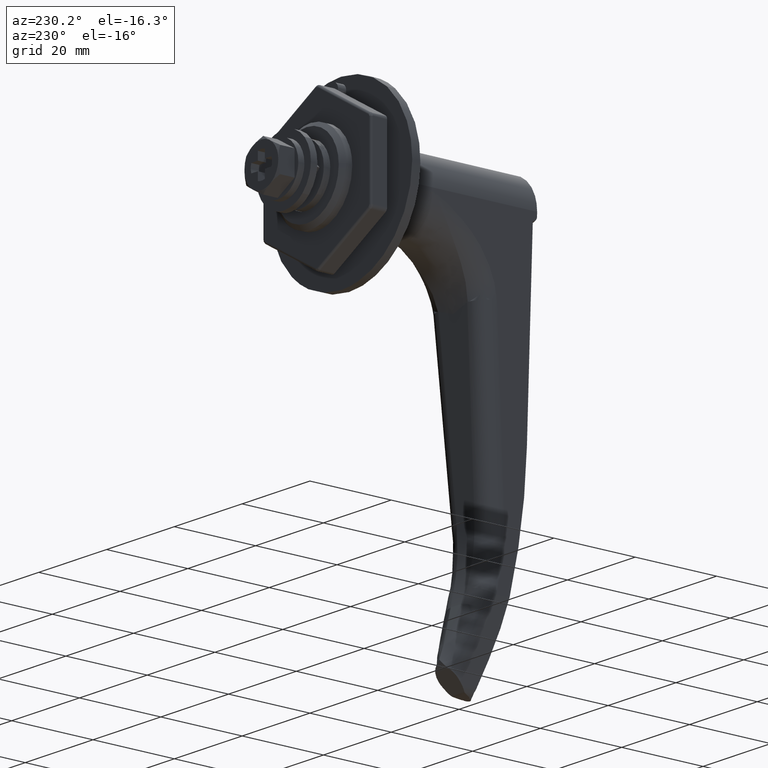
[diagram: clean part render]
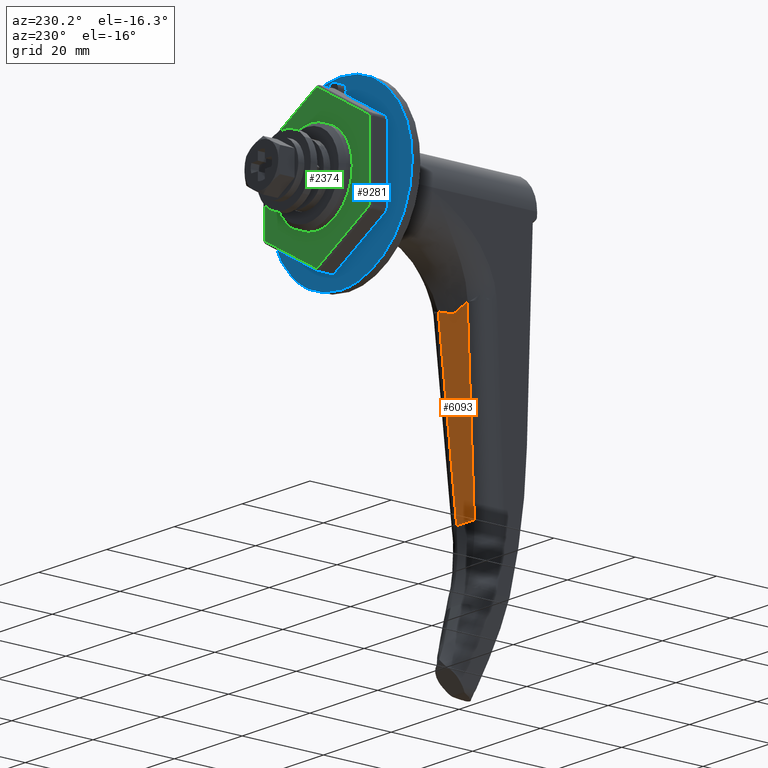
[diagram: same view with three faces highlighted in distinct colors, each labeled with its STEP entity id]
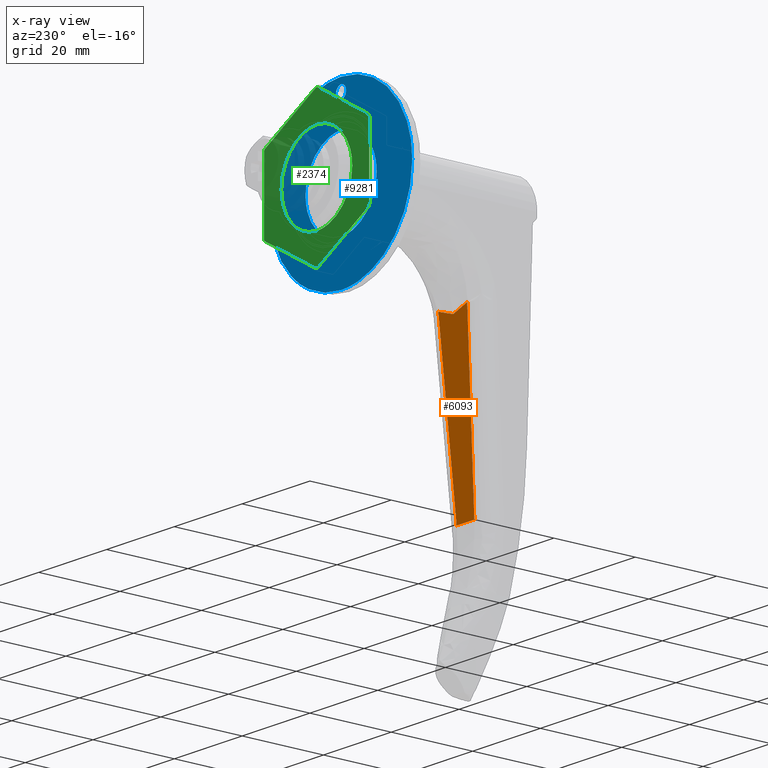
[diagram: x-ray of the same camera — body ghosted, the three highlighted faces saturated]
A machine part, auxiliary view with three faces highlighted in distinct colors.
The next image is the same camera in x-ray (body ghosted, the three faces saturated) — at least one of them is partly hidden behind the body in this view.
Their STEP definitions:

[orange] entity #6093 — the highlighted face is a freeform B-spline surface patch.
#3176=CARTESIAN_POINT('',(-21.588726110713299,2.599990310246715,-61.018468637680101));
#3177=VERTEX_POINT('',#3176);
#3224=CARTESIAN_POINT('',(-18.461229244179901,4.251630075732330,-19.176927912045400));
#3225=VERTEX_POINT('',#3224);
#3233=CARTESIAN_POINT('',(-21.588726110713299,2.599990310246715,-61.018468637680101));
#3234=CARTESIAN_POINT('',(-18.461229244179901,4.251630075732330,-19.176927912045400));
#3235=QUASI_UNIFORM_CURVE('',1,(#3233,#3234),.UNSPECIFIED.,.F.,.U.);
#3236=EDGE_CURVE('',#3177,#3225,#3235,.T.);
#3927=CARTESIAN_POINT('',(-18.461229244179901,-4.251630075732330,-19.176927912045400));
#3928=VERTEX_POINT('',#3927);
#3929=CARTESIAN_POINT('',(-21.588726110713299,-2.599990310246715,-61.018468637680101));
#3930=VERTEX_POINT('',#3929);
#3931=CARTESIAN_POINT('',(-18.461229244179901,-4.251630075732330,-19.176927912045400));
#3932=CARTESIAN_POINT('',(-21.588726110713299,-2.599990310246715,-61.018468637680101));
#3933=QUASI_UNIFORM_CURVE('',1,(#3931,#3932),.UNSPECIFIED.,.F.,.U.);
#3934=EDGE_CURVE('',#3928,#3930,#3933,.T.);
#6012=CARTESIAN_POINT('',(-21.588726110713299,2.599990310246715,-61.018468637680101));
#6013=CARTESIAN_POINT('',(-21.588726110713299,-2.599990310246715,-61.018468637680101));
#6014=QUASI_UNIFORM_CURVE('',1,(#6012,#6013),.UNSPECIFIED.,.F.,.U.);
#6015=EDGE_CURVE('',#3177,#3930,#6014,.T.);
#6067=CARTESIAN_POINT('',(-18.305010763573179,-4.676368143284589,-17.086942790605899));
#6068=CARTESIAN_POINT('',(-21.744944423548031,-4.676368143284589,-63.108451514564443));
#6069=CARTESIAN_POINT('',(-18.305010763573179,4.676368143284589,-17.086942790605899));
#6070=CARTESIAN_POINT('',(-21.744944423548031,4.676368143284589,-63.108451514564443));
#6071=B_SPLINE_SURFACE_WITH_KNOTS('',1,1,((#6067,#6069),(#6068,#6070)),.UNSPECIFIED.,.F.,.F.,.U.,(2,2),(2,2),(0.0,46.149890669582533),(0.0,9.352736286569177),.UNSPECIFIED.);
#6072=ORIENTED_EDGE('',*,*,#6015,.F.);
#6073=ORIENTED_EDGE('',*,*,#3236,.T.);
#6074=CARTESIAN_POINT('',(-18.565226909597900,0.0,-20.568271449275102));
#6075=VERTEX_POINT('',#6074);
#6076=CARTESIAN_POINT('',(-18.461229244179901,4.251630075732330,-19.176927912045400));
#6077=CARTESIAN_POINT('',(-18.507142297790001,2.890009205638521,-19.791180454716500));
#6078=CARTESIAN_POINT('',(-18.542080316848072,1.461853653546570,-20.258602361013050));
#6079=CARTESIAN_POINT('',(-18.565226909597900,0.0,-20.568271449275102));
#6080=B_SPLINE_CURVE_WITH_KNOTS('',3,(#6076,#6077,#6078,#6079),.UNSPECIFIED.,.F.,.U.,(4,4),(2.685643E-009,4.483396803675033),.UNSPECIFIED.);
#6081=EDGE_CURVE('',#3225,#6075,#6080,.T.);
#6082=ORIENTED_EDGE('',*,*,#6081,.T.);
#6083=CARTESIAN_POINT('',(-18.565226909597900,0.0,-20.568271449275102));
#6084=CARTESIAN_POINT('',(-18.542113661456970,-1.461959414743205,-20.259048465316400));
#6085=CARTESIAN_POINT('',(-18.507180767765789,-2.890216123306763,-19.791695129272050));
#6086=CARTESIAN_POINT('',(-18.461229244179901,-4.251630075732330,-19.176927912045400));
#6087=B_SPLINE_CURVE_WITH_KNOTS('',3,(#6083,#6084,#6085,#6086),.UNSPECIFIED.,.F.,.U.,(4,4),(2.719688E-009,4.483451685978779),.UNSPECIFIED.);
#6088=EDGE_CURVE('',#6075,#3928,#6087,.T.);
#6089=ORIENTED_EDGE('',*,*,#6088,.T.);
#6090=ORIENTED_EDGE('',*,*,#3934,.T.);
#6091=EDGE_LOOP('',(#6072,#6073,#6082,#6089,#6090));
#6092=FACE_OUTER_BOUND('',#6091,.T.);
#6093=ADVANCED_FACE('',(#6092),#6071,.T.);

[blue] entity #9281 — the highlighted face is a freeform B-spline surface patch.
#7919=CARTESIAN_POINT('',(9.0,-1.051363563901432,19.069876000525419));
#7920=VERTEX_POINT('',#7919);
#7926=CARTESIAN_POINT('',(9.0,-1.500000000000000,18.0));
#7927=VERTEX_POINT('',#7926);
#7928=CARTESIAN_POINT('',(9.0,-1.051363563901432,19.069876000525419));
#7929=CARTESIAN_POINT('',(9.000000000000002,-1.210982982597567,18.913540334039599));
#7930=CARTESIAN_POINT('',(9.000000000000007,-1.430220625754180,18.570714824174750));
#7931=CARTESIAN_POINT('',(8.999999999999995,-1.500129193199886,18.173725380620930));
#7932=CARTESIAN_POINT('',(9.0,-1.500000000000000,18.0));
#7933=B_SPLINE_CURVE_WITH_KNOTS('',3,(#7928,#7929,#7930,#7931,#7932),.UNSPECIFIED.,.F.,.U.,(4,1,4),(0.000000135440806,0.670111241289914,1.191309819094550),.UNSPECIFIED.);
#7934=EDGE_CURVE('',#7920,#7927,#7933,.T.);
#7936=CARTESIAN_POINT('',(9.0,0.0,16.500000000000000));
#7937=VERTEX_POINT('',#7936);
#7938=CARTESIAN_POINT('',(9.0,-1.500000000000000,18.0));
#7939=CARTESIAN_POINT('',(9.000000000000012,-1.500341379580594,17.779035364253499));
#7940=CARTESIAN_POINT('',(8.999999999999984,-1.406107155588419,17.362158952674069));
#7941=CARTESIAN_POINT('',(9.000000000000014,-1.033646048905965,16.859506385253741));
#7942=CARTESIAN_POINT('',(8.999999999999975,-0.539937621091392,16.563885609862730));
#7943=CARTESIAN_POINT('',(9.000000000000037,-0.171806615328265,16.499902080349390));
#7944=CARTESIAN_POINT('',(9.0,0.0,16.500000000000000));
#7945=B_SPLINE_CURVE_WITH_KNOTS('',3,(#7938,#7939,#7940,#7941,#7942,#7943,#7944),.UNSPECIFIED.,.F.,.U.,(4,1,1,1,4),(0.000000348526040,0.662746990287031,1.251847667183078,1.840962228493317,2.356430824938663),.UNSPECIFIED.);
#7946=EDGE_CURVE('',#7927,#7937,#7945,.T.);
#7948=CARTESIAN_POINT('',(9.0,1.500000000000000,18.0));
#7949=VERTEX_POINT('',#7948);
#7950=CARTESIAN_POINT('',(9.0,0.0,16.500000000000000));
#7951=CARTESIAN_POINT('',(8.999999999999996,0.171808448979477,16.499919557907209));
#7952=CARTESIAN_POINT('',(9.000000000000011,0.539938815198251,16.563860824536711));
#7953=CARTESIAN_POINT('',(9.000000000000011,1.033632995481787,16.859521892273520));
#7954=CARTESIAN_POINT('',(8.999999999999954,1.406142542384469,17.362146688398351));
#7955=CARTESIAN_POINT('',(9.000000000000021,1.500312085099186,17.779039540137841));
#7956=CARTESIAN_POINT('',(9.0,1.500000000000000,18.0));
#7957=B_SPLINE_CURVE_WITH_KNOTS('',3,(#7950,#7951,#7952,#7953,#7954,#7955,#7956),.UNSPECIFIED.,.F.,.U.,(4,1,1,1,4),(0.000000348526448,0.515468944971690,1.104583506281826,1.693684183177757,2.356430824938662),.UNSPECIFIED.);
#7958=EDGE_CURVE('',#7937,#7949,#7957,.T.);
#7960=CARTESIAN_POINT('',(9.0,1.069876000525417,19.051363563901429));
#7961=VERTEX_POINT('',#7960);
#7962=CARTESIAN_POINT('',(9.0,1.500000000000000,18.0));
#7963=CARTESIAN_POINT('',(8.999999999999972,1.500340624274637,18.218503629321049));
#7964=CARTESIAN_POINT('',(9.000000000000057,1.413524455582440,18.606495028035511));
#7965=CARTESIAN_POINT('',(8.999999999999961,1.189048116394448,18.930252158733790));
#7966=CARTESIAN_POINT('',(9.0,1.069876000525417,19.051363563901429));
#7967=B_SPLINE_CURVE_WITH_KNOTS('',3,(#7962,#7963,#7964,#7965,#7966),.UNSPECIFIED.,.F.,.U.,(4,1,4),(0.000000121054579,0.655380128760466,1.165121075374023),.UNSPECIFIED.);
#7968=EDGE_CURVE('',#7949,#7961,#7967,.T.);
#8003=CARTESIAN_POINT('',(9.0,0.0,19.500000000000000));
#8004=VERTEX_POINT('',#8003);
#8005=CARTESIAN_POINT('',(9.0,1.069876000525417,19.051363563901429));
#8006=CARTESIAN_POINT('',(8.999999999999993,0.913535404344215,19.210965571532459));
#8007=CARTESIAN_POINT('',(9.000000000000011,0.570724081836286,19.430268312371538));
#8008=CARTESIAN_POINT('',(8.999999999999993,0.173718721374791,19.500096914980350));
#8009=CARTESIAN_POINT('',(9.0,0.0,19.500000000000000));
#8010=B_SPLINE_CURVE_WITH_KNOTS('',3,(#8005,#8006,#8007,#8008,#8009),.UNSPECIFIED.,.F.,.U.,(4,1,4),(0.000000135440776,0.670111241289883,1.191309819094549),.UNSPECIFIED.);
#8011=EDGE_CURVE('',#7961,#8004,#8010,.T.);
#8013=CARTESIAN_POINT('',(9.0,0.0,19.500000000000000));
#8014=CARTESIAN_POINT('',(8.999999999999995,-0.169912080298298,19.500111332152208));
#8015=CARTESIAN_POINT('',(9.000000000000020,-0.558170144180952,19.433293755259101));
#8016=CARTESIAN_POINT('',(8.999999999999986,-0.895752817785830,19.223272278668968));
#8017=CARTESIAN_POINT('',(9.0,-1.051363563901432,19.069876000525419));
#8018=B_SPLINE_CURVE_WITH_KNOTS('',3,(#8013,#8014,#8015,#8016,#8017),.UNSPECIFIED.,.F.,.U.,(4,1,4),(0.000000121054596,0.509741067668168,1.165121075374026),.UNSPECIFIED.);
#8019=EDGE_CURVE('',#8004,#7920,#8018,.T.);
#8465=CARTESIAN_POINT('',(9.000000000000021,13.560582532008020,16.034668156229198));
#8466=VERTEX_POINT('',#8465);
#8467=CARTESIAN_POINT('',(9.0,20.999999999999929,-0.000001787883350));
#8468=VERTEX_POINT('',#8467);
#8469=CARTESIAN_POINT('',(9.000000000000021,13.560582532008020,16.034668156229198));
#8470=CARTESIAN_POINT('',(9.000000000000028,14.794304506320110,14.991763058540259));
#8471=CARTESIAN_POINT('',(9.000000000000012,16.822609779938539,12.828531646119080));
#8472=CARTESIAN_POINT('',(9.000000000000020,18.746171297380311,9.641251435879175));
#8473=CARTESIAN_POINT('',(9.000000000000007,19.914190464668639,6.828847771985099));
#8474=CARTESIAN_POINT('',(9.000000000000018,20.757146643539659,3.800934144146061));
#8475=CARTESIAN_POINT('',(8.999999999999996,21.000218261310330,1.425394786664547));
#8476=CARTESIAN_POINT('',(9.0,20.999999999999929,-0.000001787883350));
#8477=B_SPLINE_CURVE_WITH_KNOTS('',3,(#8469,#8470,#8471,#8472,#8473,#8474,#8475,#8476),.UNSPECIFIED.,.F.,.U.,(4,1,1,1,1,4),(0.000000015245579,4.846321744419464,8.837411524365525,11.118029291058461,13.968809607917040,18.244975742240239),.UNSPECIFIED.);
#8478=EDGE_CURVE('',#8466,#8468,#8477,.T.);
#8480=CARTESIAN_POINT('',(9.0,0.0,-21.0));
#8481=VERTEX_POINT('',#8480);
#8482=CARTESIAN_POINT('',(9.0,20.999999999999929,-0.000001787883350));
#8483=CARTESIAN_POINT('',(9.000000000000011,21.000205812864259,-1.460346255858687));
#8484=CARTESIAN_POINT('',(8.999999999999982,20.685209190925079,-4.466908332619786));
#8485=CARTESIAN_POINT('',(9.000000000000009,19.356866776980890,-8.488133796891180));
#8486=CARTESIAN_POINT('',(8.999999999999966,17.316819818317072,-12.089047506348701));
#8487=CARTESIAN_POINT('',(9.000000000000096,14.927146477844200,-14.929054643221949));
#8488=CARTESIAN_POINT('',(8.999999999999973,11.812066945447050,-17.517821062734690));
#8489=CARTESIAN_POINT('',(9.000000000000048,8.631998940811075,-19.268044922513759));
#8490=CARTESIAN_POINT('',(9.000000000000128,4.552608438858165,-20.643574480222540));
#8491=CARTESIAN_POINT('',(8.999999999999865,1.804005450216786,-21.000470332563271));
#8492=CARTESIAN_POINT('',(9.0,0.0,-21.0));
#8493=B_SPLINE_CURVE_WITH_KNOTS('',3,(#8482,#8483,#8484,#8485,#8486,#8487,#8488,#8489,#8490,#8491,#8492),.UNSPECIFIED.,.F.,.U.,(4,1,1,1,1,1,1,1,4),(0.000000061579343,4.381032639060738,9.019873073305600,12.627847744834250,16.751153246597461,20.101381394858191,24.740199506795271,27.575039120371319,32.986928832691611),.UNSPECIFIED.);
#8494=EDGE_CURVE('',#8468,#8481,#8493,.T.);
#8496=CARTESIAN_POINT('',(8.999999999999981,-14.455445887193299,-15.232861367956390));
#8497=VERTEX_POINT('',#8496);
#8498=CARTESIAN_POINT('',(9.0,0.0,-21.0));
#8499=CARTESIAN_POINT('',(8.999999999999993,-1.993046480171629,-21.000841332977249));
#8500=CARTESIAN_POINT('',(9.000000000000011,-5.314127265225916,-20.523386186468390));
#8501=CARTESIAN_POINT('',(8.999999999999968,-10.272638741049141,-18.545120224267421));
#8502=CARTESIAN_POINT('',(8.999999999999995,-13.010307951431111,-16.605389455244890));
#8503=CARTESIAN_POINT('',(8.999999999999981,-14.455445887193299,-15.232861367956390));
#8504=B_SPLINE_CURVE_WITH_KNOTS('',3,(#8498,#8499,#8500,#8501,#8502,#8503),.UNSPECIFIED.,.F.,.U.,(4,1,1,4),(0.000000033975514,5.978880015181749,9.964796192250240,15.943676173439000),.UNSPECIFIED.);
#8505=EDGE_CURVE('',#8481,#8497,#8504,.T.);
#8573=CARTESIAN_POINT('',(9.0,0.0,21.0));
#8574=VERTEX_POINT('',#8573);
#8575=CARTESIAN_POINT('',(9.0,0.0,21.0));
#8576=CARTESIAN_POINT('',(9.000000000000014,1.766009444399656,21.000501000486821));
#8577=CARTESIAN_POINT('',(8.999999999999998,5.067331284299089,20.581021265250431));
#8578=CARTESIAN_POINT('',(9.000000000000030,9.690602013485707,18.830453236742880));
#8579=CARTESIAN_POINT('',(9.000000000000009,12.329619742566900,17.076124006169039));
#8580=CARTESIAN_POINT('',(9.000000000000021,13.560582532008020,16.034668156229198));
#8581=B_SPLINE_CURVE_WITH_KNOTS('',3,(#8575,#8576,#8577,#8578,#8579,#8580),.UNSPECIFIED.,.F.,.U.,(4,1,1,4),(0.000000034945105,5.297908670073625,9.904753210727776,14.741962540870720),.UNSPECIFIED.);
#8582=EDGE_CURVE('',#8574,#8466,#8581,.T.);
#8632=CARTESIAN_POINT('',(9.0,-20.999999999999929,0.000001787883350));
#8633=VERTEX_POINT('',#8632);
#8634=CARTESIAN_POINT('',(8.999999999999981,-14.455445887193299,-15.232861367956390));
#8635=CARTESIAN_POINT('',(8.999999999999988,-15.550259122864290,-14.194294430548680));
#8636=CARTESIAN_POINT('',(8.999999999999977,-17.456511129930330,-11.947739442885091));
#8637=CARTESIAN_POINT('',(8.999999999999982,-19.277616424019481,-8.570904692285646));
#8638=CARTESIAN_POINT('',(8.999999999999986,-20.631038994811661,-4.615536064176503));
#8639=CARTESIAN_POINT('',(9.000000000000023,-21.000608958070639,-1.864187671940732));
#8640=CARTESIAN_POINT('',(9.0,-20.999999999999929,0.000001787883350));
#8641=B_SPLINE_CURVE_WITH_KNOTS('',3,(#8634,#8635,#8636,#8637,#8638,#8639,#8640),.UNSPECIFIED.,.F.,.U.,(4,1,1,1,4),(0.000000025891911,4.527115372701969,8.787918873195064,11.450924291216770,17.043255793876270),.UNSPECIFIED.);
#8642=EDGE_CURVE('',#8497,#8633,#8641,.T.);
#8644=CARTESIAN_POINT('',(9.0,-20.999999999999929,0.000001787883350));
#8645=CARTESIAN_POINT('',(8.999999999999991,-21.000573741746891,1.889929886232313));
#8646=CARTESIAN_POINT('',(9.000000000000005,-20.521351769814899,5.411589720931269));
#8647=CARTESIAN_POINT('',(9.000000000000052,-18.597587586373820,10.138008472903840));
#8648=CARTESIAN_POINT('',(8.999999999999883,-16.059343634961639,13.741633374835510));
#8649=CARTESIAN_POINT('',(9.000000000000116,-13.498956574741440,16.179023681995371));
#8650=CARTESIAN_POINT('',(8.999999999999918,-10.907689418324930,18.027934186058779));
#8651=CARTESIAN_POINT('',(9.000000000000101,-8.611720933387408,19.219163220465099));
#8652=CARTESIAN_POINT('',(9.000000000000100,-5.865255652790585,20.220906254038340));
#8653=CARTESIAN_POINT('',(8.999999999999632,-3.178383570818575,20.841594299660350));
#8654=CARTESIAN_POINT('',(9.000000000000142,-1.030817230017344,21.000046765711151));
#8655=CARTESIAN_POINT('',(9.0,0.0,21.0));
#8656=B_SPLINE_CURVE_WITH_KNOTS('',3,(#8644,#8645,#8646,#8647,#8648,#8649,#8650,#8651,#8652,#8653,#8654,#8655),.UNSPECIFIED.,.F.,.U.,(4,1,1,1,1,1,1,1,1,4),(0.000000061581211,5.669624955543984,10.566129484218621,15.204987531023260,18.812804860275492,21.132212118037032,24.740199506795321,26.544190593380119,29.894455727821889,32.986928832691603),.UNSPECIFIED.);
#8657=EDGE_CURVE('',#8633,#8574,#8656,.T.);
#8725=CARTESIAN_POINT('',(9.0,-7.227722673835004,-7.616430366722223));
#8726=VERTEX_POINT('',#8725);
#8732=CARTESIAN_POINT('',(9.0,0.0,-10.500000000000000));
#8733=VERTEX_POINT('',#8732);
#8734=CARTESIAN_POINT('',(9.0,0.0,-10.500000000000000));
#8735=CARTESIAN_POINT('',(9.000000000000009,-0.788884730183752,-10.500125840106930));
#8736=CARTESIAN_POINT('',(9.000000000000009,-2.325041893967969,-10.326065289770661));
#8737=CARTESIAN_POINT('',(8.999999999999973,-4.851512478502834,-9.454784466551343));
#8738=CARTESIAN_POINT('',(9.000000000000009,-6.414927719911177,-8.388622030128026));
#8739=CARTESIAN_POINT('',(9.0,-7.227722673835004,-7.616430366722223));
#8740=B_SPLINE_CURVE_WITH_KNOTS('',3,(#8734,#8735,#8736,#8737,#8738,#8739),.UNSPECIFIED.,.F.,.U.,(4,1,1,4),(0.000000062286655,2.366642800600213,4.608704811168156,7.971837951577985),.UNSPECIFIED.);
#8741=EDGE_CURVE('',#8733,#8726,#8740,.T.);
#8743=CARTESIAN_POINT('',(8.999999999999998,10.499999999999689,-0.000002559508380));
#8744=VERTEX_POINT('',#8743);
#8745=CARTESIAN_POINT('',(8.999999999999998,10.499999999999689,-0.000002559508380));
#8746=CARTESIAN_POINT('',(9.000000000000004,10.500054477882410,-0.687206356793712));
#8747=CARTESIAN_POINT('',(8.999999999999991,10.343591051407619,-2.276452087097048));
#8748=CARTESIAN_POINT('',(9.000000000000009,9.651839436344654,-4.328395084748673));
#8749=CARTESIAN_POINT('',(8.999999999999993,8.664914905549969,-5.997495958493964));
#8750=CARTESIAN_POINT('',(9.000000000000009,7.526589098691447,-7.402249463525625));
#8751=CARTESIAN_POINT('',(9.000000000000032,6.054144301461109,-8.672447661893896));
#8752=CARTESIAN_POINT('',(8.999999999999920,4.352618658810576,-9.608807597345299));
#8753=CARTESIAN_POINT('',(8.999999999999931,2.362166671672327,-10.307325583018891));
#8754=CARTESIAN_POINT('',(9.000000000000155,0.944963493565627,-10.500304801052030));
#8755=CARTESIAN_POINT('',(9.0,0.0,-10.500000000000000));
#8756=B_SPLINE_CURVE_WITH_KNOTS('',3,(#8745,#8746,#8747,#8748,#8749,#8750,#8751,#8752,#8753,#8754,#8755),.UNSPECIFIED.,.F.,.U.,(4,1,1,1,1,1,1,1,4),(0.000000248265781,2.061642394318534,4.767648881368269,6.442809786710246,7.860181680523562,10.179549172558970,12.241240240383700,13.658678684820430,16.493463477616299),.UNSPECIFIED.);
#8757=EDGE_CURVE('',#8744,#8733,#8756,.T.);
#8759=CARTESIAN_POINT('',(8.999999999999998,6.780291045206930,8.017333727080322));
#8760=VERTEX_POINT('',#8759);
#8761=CARTESIAN_POINT('',(8.999999999999998,6.780291045206930,8.017333727080322));
#8762=CARTESIAN_POINT('',(8.999999999999984,7.469761985077748,7.434559458310127));
#8763=CARTESIAN_POINT('',(9.000000000000030,8.406108663887354,6.408185794863694));
#8764=CARTESIAN_POINT('',(8.999999999999973,9.414873503181143,4.736444575970232));
#8765=CARTESIAN_POINT('',(9.000000000000011,10.237978510620399,2.755433000100599));
#8766=CARTESIAN_POINT('',(9.000000000000016,10.500580738495589,1.092879184159623));
#8767=CARTESIAN_POINT('',(8.999999999999998,10.499999999999689,-0.000002559508380));
#8768=B_SPLINE_CURVE_WITH_KNOTS('',3,(#8761,#8762,#8763,#8764,#8765,#8766,#8767),.UNSPECIFIED.,.F.,.U.,(4,1,1,1,4),(0.000000081527130,2.708247474160539,4.133650604764563,5.844072372925274,9.122489300267825),.UNSPECIFIED.);
#8769=EDGE_CURVE('',#8760,#8744,#8768,.T.);
#8809=CARTESIAN_POINT('',(9.0,0.0,10.500000000000000));
#8810=VERTEX_POINT('',#8809);
#8811=CARTESIAN_POINT('',(9.0,0.0,10.500000000000000));
#8812=CARTESIAN_POINT('',(9.000000000000016,1.190265640989344,10.500905214686810));
#8813=CARTESIAN_POINT('',(8.999999999999989,2.878828879427262,10.209605077060321));
#8814=CARTESIAN_POINT('',(9.000000000000007,5.136580424527804,9.224541649019750));
#8815=CARTESIAN_POINT('',(8.999999999999981,6.194112338047700,8.513262643198365));
#8816=CARTESIAN_POINT('',(8.999999999999998,6.780291045206930,8.017333727080322));
#8817=B_SPLINE_CURVE_WITH_KNOTS('',3,(#8811,#8812,#8813,#8814,#8815,#8816),.UNSPECIFIED.,.F.,.U.,(4,1,1,4),(0.000000047730281,3.570354559783343,5.067545528080011,7.370981184399978),.UNSPECIFIED.);
#8818=EDGE_CURVE('',#8810,#8760,#8817,.T.);
#8820=CARTESIAN_POINT('',(9.0,-10.499999999999689,0.000002559508222));
#8821=VERTEX_POINT('',#8820);
#8822=CARTESIAN_POINT('',(9.0,-10.499999999999689,0.000002559508222));
#8823=CARTESIAN_POINT('',(8.999999999999972,-10.500470089572790,1.073849138488684));
#8824=CARTESIAN_POINT('',(9.000000000000011,-10.234113950426220,2.791571217804887));
#8825=CARTESIAN_POINT('',(8.999999999999998,-9.212179707588666,5.216294279725378));
#8826=CARTESIAN_POINT('',(9.000000000000004,-7.929411555226253,7.014242814690380));
#8827=CARTESIAN_POINT('',(8.999999999999993,-6.097514658665562,8.654204170202357));
#8828=CARTESIAN_POINT('',(9.000000000000078,-4.093484138415049,9.773387643241815));
#8829=CARTESIAN_POINT('',(9.000000000000034,-1.932791322201336,10.385346644975931));
#8830=CARTESIAN_POINT('',(8.999999999999915,-0.601304901441496,10.500036143325030));
#8831=CARTESIAN_POINT('',(9.0,0.0,10.500000000000000));
#8832=B_SPLINE_CURVE_WITH_KNOTS('',3,(#8822,#8823,#8824,#8825,#8826,#8827,#8828,#8829,#8830,#8831),.UNSPECIFIED.,.F.,.U.,(4,1,1,1,1,1,1,4),(0.000000248265930,3.221377719530027,5.154218440894049,7.860181680523644,9.792988692686929,12.498955170558199,14.689533207535360,16.493463477616402),.UNSPECIFIED.);
#8833=EDGE_CURVE('',#8821,#8810,#8832,.T.);
#8835=CARTESIAN_POINT('',(9.0,-7.227722673835004,-7.616430366722223));
#8836=CARTESIAN_POINT('',(9.000000000000004,-7.710658577129719,-7.158190635885669));
#8837=CARTESIAN_POINT('',(9.0,-8.735557576047047,-5.981446436986691));
#8838=CARTESIAN_POINT('',(9.000000000000007,-9.776137471611914,-4.051883331101468));
#8839=CARTESIAN_POINT('',(8.999999999999966,-10.377148568261241,-1.952823459063162));
#8840=CARTESIAN_POINT('',(9.000000000000092,-10.500080221085449,-0.665749934946080));
#8841=CARTESIAN_POINT('',(9.0,-10.499999999999689,0.000002559508222));
#8842=B_SPLINE_CURVE_WITH_KNOTS('',3,(#8835,#8836,#8837,#8838,#8839,#8840,#8841),.UNSPECIFIED.,.F.,.U.,(4,1,1,1,4),(0.000000066862032,1.997258631269657,4.660256539424528,6.524374585231938,8.521629371096674),.UNSPECIFIED.);
#8843=EDGE_CURVE('',#8726,#8821,#8842,.T.);
#9252=CARTESIAN_POINT('',(9.0,-23.097899918595768,-23.097899918595850));
#9253=CARTESIAN_POINT('',(9.0,-23.097899918595768,23.097901045123638));
#9254=CARTESIAN_POINT('',(9.0,23.097901045123550,-23.097899918595850));
#9255=CARTESIAN_POINT('',(9.0,23.097901045123550,23.097901045123638));
#9256=B_SPLINE_SURFACE_WITH_KNOTS('',1,1,((#9252,#9254),(#9253,#9255)),.UNSPECIFIED.,.F.,.F.,.U.,(2,2),(2,2),(0.0,46.195800963719492),(0.0,46.195800963719321),.UNSPECIFIED.);
#9257=ORIENTED_EDGE('',*,*,#8505,.F.);
#9258=ORIENTED_EDGE('',*,*,#8494,.F.);
#9259=ORIENTED_EDGE('',*,*,#8478,.F.);
#9260=ORIENTED_EDGE('',*,*,#8582,.F.);
#9261=ORIENTED_EDGE('',*,*,#8657,.F.);
#9262=ORIENTED_EDGE('',*,*,#8642,.F.);
#9263=EDGE_LOOP('',(#9257,#9258,#9259,#9260,#9261,#9262));
#9264=FACE_OUTER_BOUND('',#9263,.T.);
#9265=ORIENTED_EDGE('',*,*,#8757,.T.);
#9266=ORIENTED_EDGE('',*,*,#8741,.T.);
#9267=ORIENTED_EDGE('',*,*,#8843,.T.);
#9268=ORIENTED_EDGE('',*,*,#8833,.T.);
#9269=ORIENTED_EDGE('',*,*,#8818,.T.);
#9270=ORIENTED_EDGE('',*,*,#8769,.T.);
#9271=EDGE_LOOP('',(#9265,#9266,#9267,#9268,#9269,#9270));
#9272=FACE_BOUND('',#9271,.T.);
#9273=ORIENTED_EDGE('',*,*,#7946,.F.);
#9274=ORIENTED_EDGE('',*,*,#7934,.F.);
#9275=ORIENTED_EDGE('',*,*,#8019,.F.);
#9276=ORIENTED_EDGE('',*,*,#8011,.F.);
#9277=ORIENTED_EDGE('',*,*,#7968,.F.);
#9278=ORIENTED_EDGE('',*,*,#7958,.F.);
#9279=EDGE_LOOP('',(#9273,#9274,#9275,#9276,#9277,#9278));
#9280=FACE_BOUND('',#9279,.T.);
#9281=ADVANCED_FACE('',(#9264,#9272,#9280),#9256,.F.);

[green] entity #2374 — the highlighted face is a freeform B-spline surface patch.
#468=CARTESIAN_POINT('',(17.000000000023800,-8.017334614538587,6.780291795200267));
#469=VERTEX_POINT('',#468);
#470=CARTESIAN_POINT('',(17.0,0.0,10.500000000000000));
#471=VERTEX_POINT('',#470);
#472=CARTESIAN_POINT('',(17.000000000023800,-8.017334614538587,6.780291795200267));
#473=CARTESIAN_POINT('',(17.000000000022329,-7.526536698925447,7.360841447424028));
#474=CARTESIAN_POINT('',(17.000000000019391,-6.521928441786195,8.315677768704569));
#475=CARTESIAN_POINT('',(17.000000000013259,-4.505726130911639,9.589689548539930));
#476=CARTESIAN_POINT('',(17.000000000007098,-2.328187010554578,10.341753670960451));
#477=CARTESIAN_POINT('',(17.000000000001901,-0.665162467314588,10.500017313920370));
#478=CARTESIAN_POINT('',(17.0,0.0,10.500000000000000));
#479=B_SPLINE_CURVE_WITH_KNOTS('',3,(#472,#473,#474,#475,#476,#477,#478),.UNSPECIFIED.,.F.,.U.,(4,1,1,1,4),(0.000000081507496,2.280621872612874,4.133649673896115,7.126944509678962,9.122487245853515),.UNSPECIFIED.);
#480=EDGE_CURVE('',#469,#471,#479,.T.);
#542=CARTESIAN_POINT('',(16.999999999995261,-7.227722743825426,-7.616430440003363));
#543=VERTEX_POINT('',#542);
#549=CARTESIAN_POINT('',(17.0,0.0,-10.500000000000000));
#550=VERTEX_POINT('',#549);
#551=CARTESIAN_POINT('',(17.0,0.0,-10.500000000000000));
#552=CARTESIAN_POINT('',(16.999999999999570,-0.622796560538464,-10.500054009267110));
#553=CARTESIAN_POINT('',(16.999999999998760,-1.909913263271516,-10.385169178408070));
#554=CARTESIAN_POINT('',(16.999999999997669,-3.596798605679293,-9.913164075683314));
#555=CARTESIAN_POINT('',(16.999999999996369,-5.447460065141995,-9.057664752290535));
#556=CARTESIAN_POINT('',(16.999999999995751,-6.565329381275000,-8.245463082619803));
#557=CARTESIAN_POINT('',(16.999999999995261,-7.227722743825426,-7.616430440003363));
#558=B_SPLINE_CURVE_WITH_KNOTS('',3,(#551,#552,#553,#554,#555,#556,#557),.UNSPECIFIED.,.F.,.U.,(4,1,1,1,4),(0.000000062286845,1.868397264481435,3.861398442662592,5.231506210153783,7.971837990371561),.UNSPECIFIED.);
#559=EDGE_CURVE('',#550,#543,#558,.T.);
#561=CARTESIAN_POINT('',(17.0,10.499999999999780,-0.000002153614104));
#562=VERTEX_POINT('',#561);
#563=CARTESIAN_POINT('',(17.0,10.499999999999780,-0.000002153614104));
#564=CARTESIAN_POINT('',(17.0,10.500074813774230,-0.687213945798520));
#565=CARTESIAN_POINT('',(17.0,10.351924606139400,-2.190492204245186));
#566=CARTESIAN_POINT('',(17.000000000000039,9.580179028591795,-4.577021537804177));
#567=CARTESIAN_POINT('',(16.999999999999901,8.197527677713515,-6.730878279572946));
#568=CARTESIAN_POINT('',(17.000000000000121,6.467043466566977,-8.357900405427650));
#569=CARTESIAN_POINT('',(16.999999999999819,4.564804328603042,-9.546369736707044));
#570=CARTESIAN_POINT('',(17.000000000000071,2.405273555452670,-10.319036543588020));
#571=CARTESIAN_POINT('',(16.999999999999929,0.773122905344537,-10.500104248163820));
#572=CARTESIAN_POINT('',(17.0,0.0,-10.500000000000000));
#573=B_SPLINE_CURVE_WITH_KNOTS('',3,(#563,#564,#565,#566,#567,#568,#569,#570,#571,#572),.UNSPECIFIED.,.F.,.U.,(4,1,1,1,1,1,1,4),(0.000000248199601,2.061642422874002,4.509941881959295,7.473624210244905,9.664087494318981,11.596960104571099,14.174084660327621,16.493463706386461),.UNSPECIFIED.);
#574=EDGE_CURVE('',#562,#550,#573,.T.);
#576=CARTESIAN_POINT('',(17.0,0.0,10.500000000000000));
#577=CARTESIAN_POINT('',(17.000000000000039,0.558348355058092,10.500020319503340));
#578=CARTESIAN_POINT('',(16.999999999999918,1.846894424401979,10.397029764213020));
#579=CARTESIAN_POINT('',(17.000000000000089,3.931545705065935,9.834118610726513));
#580=CARTESIAN_POINT('',(17.000000000000021,5.916130804510100,8.773238968375219));
#581=CARTESIAN_POINT('',(17.000000000000039,7.426364164665181,7.486348578663098));
#582=CARTESIAN_POINT('',(16.999999999999691,8.515107566303309,6.208343053134535));
#583=CARTESIAN_POINT('',(17.000000000000540,9.542751870078321,4.563970568676505));
#584=CARTESIAN_POINT('',(16.999999999999790,10.314226473491130,2.448222879149412));
#585=CARTESIAN_POINT('',(17.000000000000149,10.500130458126691,0.773123266037953));
#586=CARTESIAN_POINT('',(17.0,10.499999999999780,-0.000002153614104));
#587=B_SPLINE_CURVE_WITH_KNOTS('',3,(#576,#577,#578,#579,#580,#581,#582,#583,#584,#585,#586),.UNSPECIFIED.,.F.,.U.,(4,1,1,1,1,1,1,1,4),(0.000000247449186,1.675064403727577,3.865654793607384,6.442810823664397,8.375513696112501,9.792990266580844,11.468093021451590,14.174086745593790,16.493466134026729),.UNSPECIFIED.);
#588=EDGE_CURVE('',#471,#562,#587,.T.);
#607=CARTESIAN_POINT('',(17.0,-10.499999999999780,0.000002153614047));
#608=VERTEX_POINT('',#607);
#609=CARTESIAN_POINT('',(17.0,-10.499999999999780,0.000002153614047));
#610=CARTESIAN_POINT('',(17.000000000002959,-10.500171696097061,0.844605113738437));
#611=CARTESIAN_POINT('',(17.000000000008608,-10.304442144716230,2.456914962072398));
#612=CARTESIAN_POINT('',(17.000000000016762,-9.454504329044973,4.778003067154778));
#613=CARTESIAN_POINT('',(17.000000000021529,-8.562891205707965,6.135519562649781));
#614=CARTESIAN_POINT('',(17.000000000023800,-8.017334614538587,6.780291795200267));
#615=B_SPLINE_CURVE_WITH_KNOTS('',3,(#609,#610,#611,#612,#613,#614),.UNSPECIFIED.,.F.,.U.,(4,1,1,4),(0.000000047738971,2.533777566620988,4.837201919306656,7.370979438181001),.UNSPECIFIED.);
#616=EDGE_CURVE('',#608,#469,#615,.T.);
#618=CARTESIAN_POINT('',(16.999999999995261,-7.227722743825426,-7.616430440003363));
#619=CARTESIAN_POINT('',(16.999999999995580,-7.775126149210523,-7.097144621813951));
#620=CARTESIAN_POINT('',(16.999999999996209,-8.612706195149848,-6.110004387253156));
#621=CARTESIAN_POINT('',(16.999999999997200,-9.563596689652746,-4.448911106035327));
#622=CARTESIAN_POINT('',(16.999999999998540,-10.291731885373901,-2.485318372966038));
#623=CARTESIAN_POINT('',(16.999999999999272,-10.500315848659300,-0.932084130518001));
#624=CARTESIAN_POINT('',(17.0,-10.499999999999780,0.000002153614047));
#625=B_SPLINE_CURVE_WITH_KNOTS('',3,(#618,#619,#620,#621,#622,#623,#624),.UNSPECIFIED.,.F.,.U.,(4,1,1,1,4),(0.000000066861384,2.263562286532551,3.861379023458669,5.725455403240260,8.521629005989208),.UNSPECIFIED.);
#626=EDGE_CURVE('',#543,#608,#625,.T.);
#1354=CARTESIAN_POINT('',(17.0,-0.254045556264001,17.750651663578051));
#1355=VERTEX_POINT('',#1354);
#1365=CARTESIAN_POINT('',(17.0,-2.005893E-010,17.819999995750411));
#1366=VERTEX_POINT('',#1365);
#1367=CARTESIAN_POINT('',(17.0,-2.005893E-010,17.819999995750411));
#1368=CARTESIAN_POINT('',(17.000000000000011,-0.088845444865726,17.820103000509480));
#1369=CARTESIAN_POINT('',(16.999999999999989,-0.177586486826805,17.795949646939171));
#1370=CARTESIAN_POINT('',(17.0,-0.254045556264001,17.750651663578051));
#1371=B_SPLINE_CURVE_WITH_KNOTS('',3,(#1367,#1368,#1369,#1370),.UNSPECIFIED.,.F.,.U.,(4,4),(0.000000084210067,0.266532703557373),.UNSPECIFIED.);
#1372=EDGE_CURVE('',#1366,#1355,#1371,.T.);
#1419=CARTESIAN_POINT('',(17.0,0.254045556265894,17.750651663576949));
#1420=VERTEX_POINT('',#1419);
#1421=CARTESIAN_POINT('',(17.0,0.254045556265894,17.750651663576949));
#1422=CARTESIAN_POINT('',(16.999999999999989,0.177586483765618,17.795949653499989));
#1423=CARTESIAN_POINT('',(17.000000000000028,0.088845430100932,17.820103006688729));
#1424=CARTESIAN_POINT('',(17.0,-2.005893E-010,17.819999995750411));
#1425=B_SPLINE_CURVE_WITH_KNOTS('',3,(#1421,#1422,#1423,#1424),.UNSPECIFIED.,.F.,.U.,(4,4),(0.000000084210066,0.266532703970871),.UNSPECIFIED.);
#1426=EDGE_CURVE('',#1420,#1366,#1425,.T.);
#1473=CARTESIAN_POINT('',(17.0,15.500000000000000,8.660000000000000));
#1474=VERTEX_POINT('',#1473);
#1496=CARTESIAN_POINT('',(17.0,15.254045556247650,9.090651663587542));
#1497=VERTEX_POINT('',#1496);
#1507=CARTESIAN_POINT('',(17.0,15.500000000000000,8.660000000000000));
#1508=CARTESIAN_POINT('',(17.000000000000021,15.500120919117830,8.735704232396522));
#1509=CARTESIAN_POINT('',(16.999999999999979,15.459942430793530,8.908572356268454));
#1510=CARTESIAN_POINT('',(17.000000000000028,15.338101218959380,9.041480698649989));
#1511=CARTESIAN_POINT('',(17.0,15.254045556247650,9.090651663587542));
#1512=B_SPLINE_CURVE_WITH_KNOTS('',3,(#1507,#1508,#1509,#1510,#1511),.UNSPECIFIED.,.F.,.U.,(4,1,4),(0.000000570747966,0.227101273945074,0.519005440767146),.UNSPECIFIED.);
#1513=EDGE_CURVE('',#1474,#1497,#1512,.T.);
#1533=CARTESIAN_POINT('',(17.0,15.254045556247650,9.090651663587542));
#1534=CARTESIAN_POINT('',(17.0,0.254045556265894,17.750651663576949));
#1535=QUASI_UNIFORM_CURVE('',1,(#1533,#1534),.UNSPECIFIED.,.F.,.U.);
#1536=EDGE_CURVE('',#1497,#1420,#1535,.T.);
#1561=CARTESIAN_POINT('',(17.0,15.500000000000000,-8.660000000000119));
#1562=VERTEX_POINT('',#1561);
#1580=CARTESIAN_POINT('',(17.0,15.500000000000000,-8.660000000000119));
#1581=CARTESIAN_POINT('',(17.0,15.500000000000000,8.660000000000000));
#1582=QUASI_UNIFORM_CURVE('',1,(#1580,#1581),.UNSPECIFIED.,.F.,.U.);
#1583=EDGE_CURVE('',#1562,#1474,#1582,.T.);
#1621=CARTESIAN_POINT('',(17.0,15.245943211741199,-9.095329687246920));
#1622=VERTEX_POINT('',#1621);
#1644=CARTESIAN_POINT('',(17.0,15.245943211741199,-9.095329687246920));
#1645=CARTESIAN_POINT('',(17.000000000000011,15.313077721256230,-9.057527447241039));
#1646=CARTESIAN_POINT('',(16.999999999999989,15.445933292367529,-8.934726938587849));
#1647=CARTESIAN_POINT('',(17.0,15.500319445745211,-8.759120053420203));
#1648=CARTESIAN_POINT('',(17.0,15.500000000000000,-8.660000000000119));
#1649=B_SPLINE_CURVE_WITH_KNOTS('',3,(#1644,#1645,#1646,#1647,#1648),.UNSPECIFIED.,.F.,.U.,(4,1,4),(0.000000623778029,0.231198696688397,0.528366419880417),.UNSPECIFIED.);
#1650=EDGE_CURVE('',#1622,#1562,#1649,.T.);
#1671=CARTESIAN_POINT('',(17.0,-15.254045556248000,9.090651663587371));
#1672=VERTEX_POINT('',#1671);
#1682=CARTESIAN_POINT('',(17.0,-0.254045556264001,17.750651663578051));
#1683=CARTESIAN_POINT('',(17.0,-15.254045556248000,9.090651663587371));
#1684=QUASI_UNIFORM_CURVE('',1,(#1682,#1683),.UNSPECIFIED.,.F.,.U.);
#1685=EDGE_CURVE('',#1355,#1672,#1684,.T.);
#1710=CARTESIAN_POINT('',(17.0,0.245943211731615,-17.756329687252300));
#1711=VERTEX_POINT('',#1710);
#1729=CARTESIAN_POINT('',(17.0,0.245943211731615,-17.756329687252300));
#1730=CARTESIAN_POINT('',(17.0,15.245943211741199,-9.095329687246920));
#1731=QUASI_UNIFORM_CURVE('',1,(#1729,#1730),.UNSPECIFIED.,.F.,.U.);
#1732=EDGE_CURVE('',#1711,#1622,#1731,.T.);
#1772=CARTESIAN_POINT('',(17.0,-15.500000000000000,8.660000000000000));
#1773=VERTEX_POINT('',#1772);
#1783=CARTESIAN_POINT('',(17.0,-15.254045556248000,9.090651663587371));
#1784=CARTESIAN_POINT('',(17.000000000000011,-15.338107683704930,9.041481350854708));
#1785=CARTESIAN_POINT('',(16.999999999999989,-15.459928464742170,8.908571784901625));
#1786=CARTESIAN_POINT('',(17.000000000000011,-15.500131615785270,8.735702509578747));
#1787=CARTESIAN_POINT('',(17.0,-15.500000000000000,8.660000000000000));
#1788=B_SPLINE_CURVE_WITH_KNOTS('',3,(#1783,#1784,#1785,#1786,#1787),.UNSPECIFIED.,.F.,.U.,(4,1,4),(0.000000570747979,0.291904737569836,0.519005440766765),.UNSPECIFIED.);
#1789=EDGE_CURVE('',#1672,#1773,#1788,.T.);
#1836=CARTESIAN_POINT('',(17.0,-0.245943211733659,-17.756329687251149));
#1837=VERTEX_POINT('',#1836);
#1859=CARTESIAN_POINT('',(17.0,-0.245943211733659,-17.756329687251149));
#1860=CARTESIAN_POINT('',(16.999999999999989,-0.189991770765304,-17.787993640559581));
#1861=CARTESIAN_POINT('',(17.000000000000028,-0.024251726669950,-17.843144385619659));
#1862=CARTESIAN_POINT('',(16.999999999999979,0.152792043280586,-17.809574085839230));
#1863=CARTESIAN_POINT('',(17.0,0.245943211731615,-17.756329687252300));
#1864=B_SPLINE_CURVE_WITH_KNOTS('',3,(#1859,#1860,#1861,#1862,#1863),.UNSPECIFIED.,.F.,.U.,(4,1,4),(0.000000545713082,0.192908989468116,0.514343476740770),.UNSPECIFIED.);
#1865=EDGE_CURVE('',#1837,#1711,#1864,.T.);
#1886=CARTESIAN_POINT('',(17.0,-15.500000000000000,-8.660000000000130));
#1887=VERTEX_POINT('',#1886);
#1897=CARTESIAN_POINT('',(17.0,-15.500000000000000,8.660000000000000));
#1898=CARTESIAN_POINT('',(17.0,-15.500000000000000,-8.660000000000130));
#1899=QUASI_UNIFORM_CURVE('',1,(#1897,#1898),.UNSPECIFIED.,.F.,.U.);
#1900=EDGE_CURVE('',#1773,#1887,#1899,.T.);
#1925=CARTESIAN_POINT('',(17.0,-15.245943211740549,-9.095329687247320));
#1926=VERTEX_POINT('',#1925);
#1944=CARTESIAN_POINT('',(17.0,-15.245943211740549,-9.095329687247320));
#1945=CARTESIAN_POINT('',(17.0,-0.245943211733659,-17.756329687251149));
#1946=QUASI_UNIFORM_CURVE('',1,(#1944,#1945),.UNSPECIFIED.,.F.,.U.);
#1947=EDGE_CURVE('',#1926,#1837,#1946,.T.);
#1995=CARTESIAN_POINT('',(17.0,-15.500000000000000,-8.660000000000130));
#1996=CARTESIAN_POINT('',(16.999999999999961,-15.500382758157921,-8.759143384445226));
#1997=CARTESIAN_POINT('',(17.000000000000082,-15.445826154167090,-8.934687144426738));
#1998=CARTESIAN_POINT('',(16.999999999999972,-15.313109578609810,-9.057532768678515));
#1999=CARTESIAN_POINT('',(17.0,-15.245943211740549,-9.095329687247320));
#2000=B_SPLINE_CURVE_WITH_KNOTS('',3,(#1995,#1996,#1997,#1998,#1999),.UNSPECIFIED.,.F.,.U.,(4,1,4),(0.000000623777976,0.297168346970412,0.528366419881179),.UNSPECIFIED.);
#2001=EDGE_CURVE('',#1887,#1926,#2000,.T.);
#2346=CARTESIAN_POINT('',(17.0,-17.048449939915990,-19.601211003433288));
#2347=CARTESIAN_POINT('',(17.0,-17.048449939915990,19.600266126563000));
#2348=CARTESIAN_POINT('',(17.0,17.048450771400780,-19.601211003433288));
#2349=CARTESIAN_POINT('',(17.0,17.048450771400780,19.600266126563000));
#2350=B_SPLINE_SURFACE_WITH_KNOTS('',1,1,((#2346,#2348),(#2347,#2349)),.UNSPECIFIED.,.F.,.F.,.U.,(2,2),(2,2),(0.0,39.201477129996292),(0.0,34.096900711316771),.UNSPECIFIED.);
#2351=ORIENTED_EDGE('',*,*,#1583,.T.);
#2352=ORIENTED_EDGE('',*,*,#1513,.T.);
#2353=ORIENTED_EDGE('',*,*,#1536,.T.);
#2354=ORIENTED_EDGE('',*,*,#1426,.T.);
#2355=ORIENTED_EDGE('',*,*,#1372,.T.);
#2356=ORIENTED_EDGE('',*,*,#1685,.T.);
#2357=ORIENTED_EDGE('',*,*,#1789,.T.);
#2358=ORIENTED_EDGE('',*,*,#1900,.T.);
#2359=ORIENTED_EDGE('',*,*,#2001,.T.);
#2360=ORIENTED_EDGE('',*,*,#1947,.T.);
#2361=ORIENTED_EDGE('',*,*,#1865,.T.);
#2362=ORIENTED_EDGE('',*,*,#1732,.T.);
#2363=ORIENTED_EDGE('',*,*,#1650,.T.);
#2364=EDGE_LOOP('',(#2351,#2352,#2353,#2354,#2355,#2356,#2357,#2358,#2359,#2360,#2361,#2362,#2363));
#2365=FACE_OUTER_BOUND('',#2364,.T.);
#2366=ORIENTED_EDGE('',*,*,#588,.T.);
#2367=ORIENTED_EDGE('',*,*,#574,.T.);
#2368=ORIENTED_EDGE('',*,*,#559,.T.);
#2369=ORIENTED_EDGE('',*,*,#626,.T.);
#2370=ORIENTED_EDGE('',*,*,#616,.T.);
#2371=ORIENTED_EDGE('',*,*,#480,.T.);
#2372=EDGE_LOOP('',(#2366,#2367,#2368,#2369,#2370,#2371));
#2373=FACE_BOUND('',#2372,.T.);
#2374=ADVANCED_FACE('',(#2365,#2373),#2350,.F.);